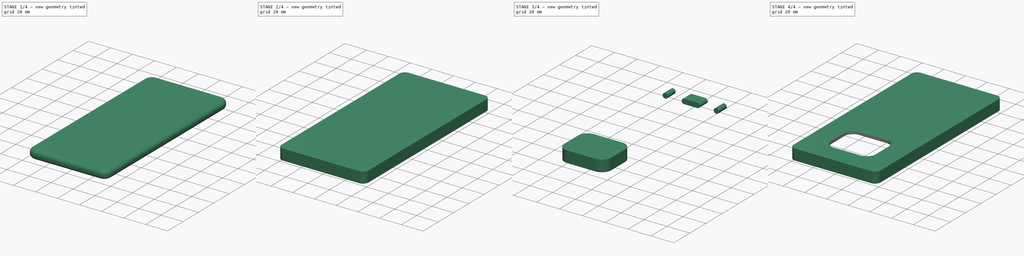
[diagram: build sequence overview — one tinted view per stage of 4, left to right]
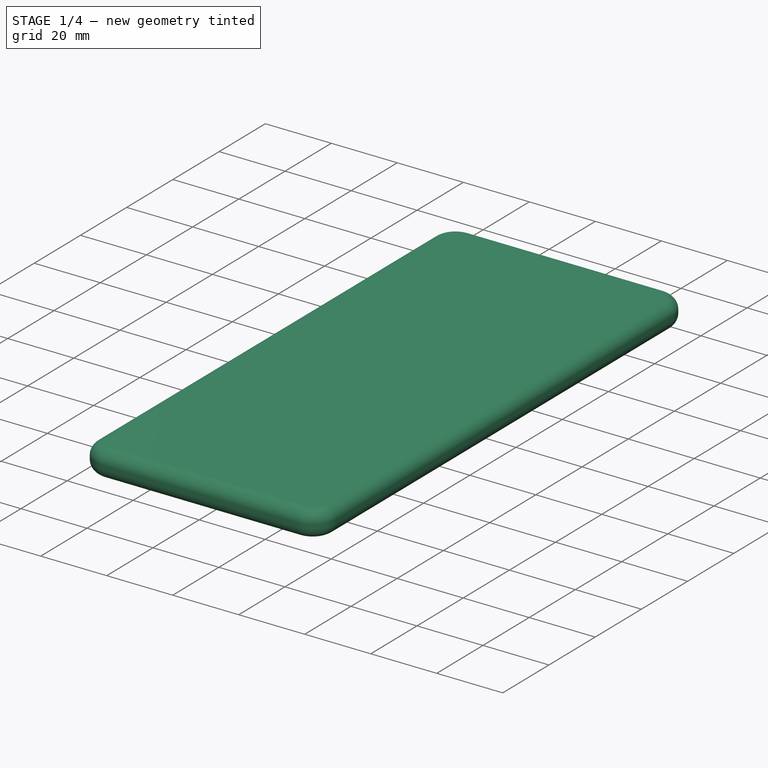
[diagram: stage 1 of 4 — iso view after this stage's code; geometry added in this stage tinted green]
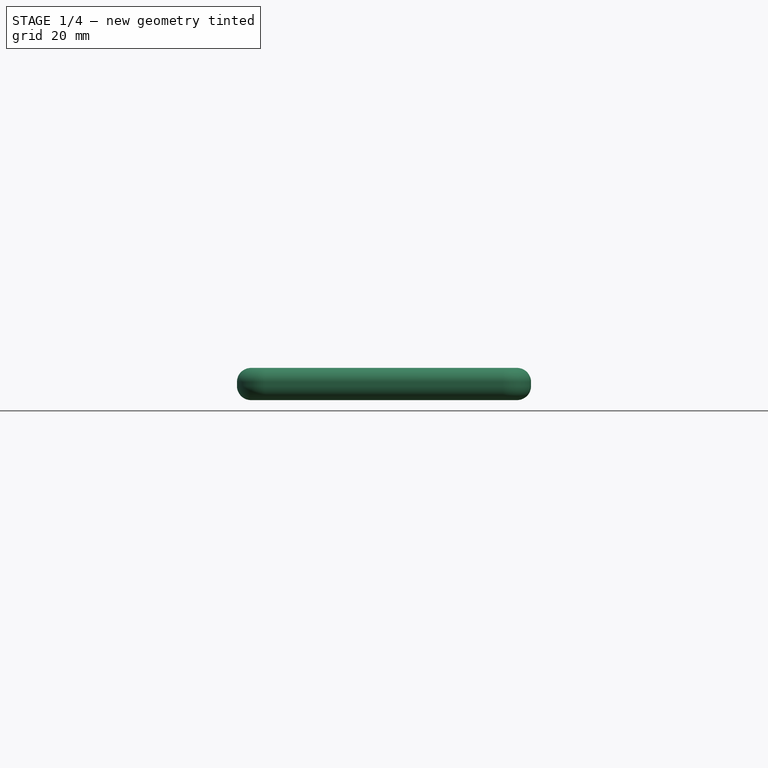
[diagram: stage 1 of 4 — front view after this stage's code; geometry added in this stage tinted green]
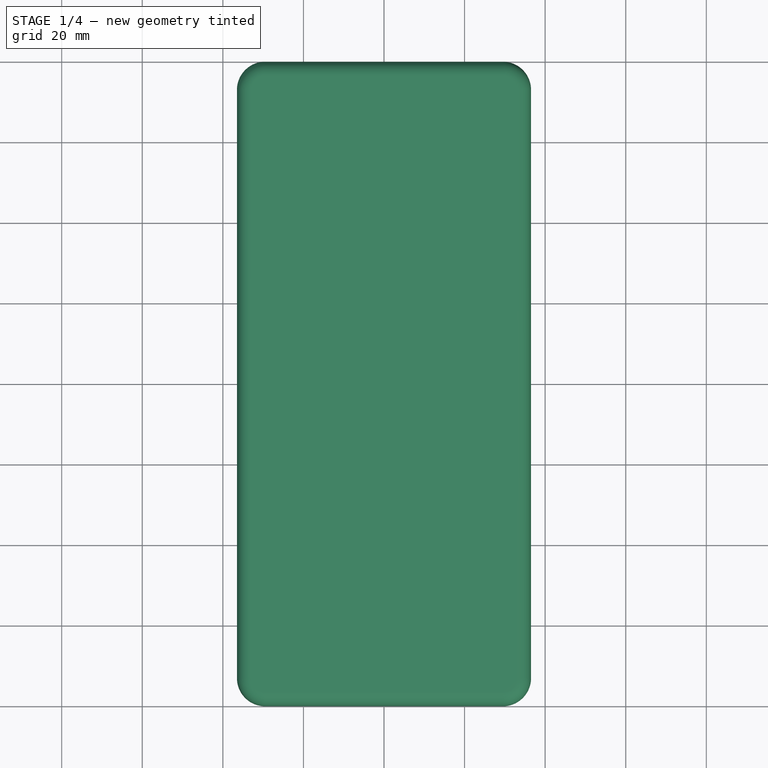
[diagram: stage 1 of 4 — top view after this stage's code; geometry added in this stage tinted green]
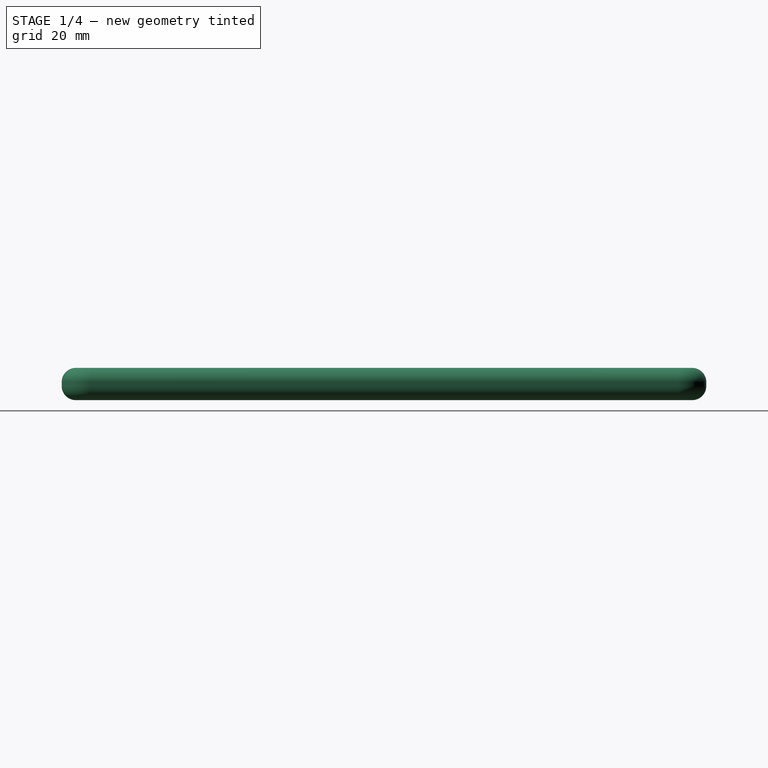
[diagram: stage 1 of 4 — right view after this stage's code; geometry added in this stage tinted green]
FCSTD DOCUMENT  (FreeCAD 0.21RUnknown)
Label: part42a-phone_case-partWB
License: All rights reserved
LicenseURL: http://en.wikipedia.org/wiki/All_rights_reserved
objects: Sketcher::SketchObject×5, Part::Extrusion×5, Part::Cut×2, Part::Fillet×1, Part::MultiFuse×1, Part::Compound×1
note: 15 computed .brp shape members not serialized (recipe doc carries the construction recipe); baked Part::Feature solids carry a one-line shape summary decoded from their .brp

FEATURE [Sketcher::SketchObject] Sketch
  FullyConstrained = true
  sketch-geometry (10):
    g0: ArcOfCircle CenterX=-29.5 CenterY=73 CenterZ=0 NormalX=0 NormalY=0 NormalZ=1 AngleXU=0 Radius=7 StartAngle=1.5708 EndAngle=3.14159
    g1: LineSegment StartX=-29.5 StartY=80 StartZ=0 EndX=29.5 EndY=80 EndZ=0
    g2: ArcOfCircle CenterX=29.5 CenterY=73 CenterZ=0 NormalX=0 NormalY=0 NormalZ=1 AngleXU=0 Radius=7 StartAngle=-1.724e-12 EndAngle=1.5708
    g3: LineSegment StartX=36.5 StartY=73 StartZ=0 EndX=36.5 EndY=-73 EndZ=0
    g4: ArcOfCircle CenterX=29.5 CenterY=-73 CenterZ=0 NormalX=0 NormalY=0 NormalZ=1 AngleXU=0 Radius=7 StartAngle=4.71239 EndAngle=6.28319
    g5: LineSegment StartX=29.5 StartY=-80 StartZ=0 EndX=-29.5 EndY=-80 EndZ=0
    g6: ArcOfCircle CenterX=-29.5 CenterY=-73 CenterZ=0 NormalX=0 NormalY=0 NormalZ=1 AngleXU=0 Radius=7 StartAngle=3.14159 EndAngle=4.71239
    g7: LineSegment StartX=-36.5 StartY=-73 StartZ=0 EndX=-36.5 EndY=73 EndZ=0
    g8: GeomPoint X=-36.5 Y=80 Z=0
    g9: GeomPoint X=36.5 Y=-80 Z=0
  constraints (23):
    c: Tangent(g0,g1) = 1.5708
    c: Tangent(g1,g2) = 1.5708
    c: Tangent(g2,g3) = 1.5708
    c: Tangent(g3,g4) = 1.5708
    c: Tangent(g4,g5) = 1.5708
    c: Tangent(g5,g6) = 1.5708
    c: Tangent(g6,g7) = 1.5708
    c: Tangent(g7,g0) = 1.5708
    c: Horizontal(g1)
    c: Horizontal(g5)
    c: Vertical(g3)
    c: Vertical(g7)
    c: Equal(g0,g2)
    c: Equal(g2,g4)
    c: Equal(g4,g6)
    c: PointOnObject(g8,g1)
    c: PointOnObject(g8,g7)
    c: PointOnObject(g9,g3)
    c: PointOnObject(g9,g5)
    c: Symmetric(g2,g6,g-1)
    c: DistanceY(g4,g1) = 160
    c: DistanceX(g0,g2) = 73
    c: Radius(g0) = 7
FEATURE [Part::Extrusion] Extrude
  Base = -> Sketch
  Dir = (0,0,1)
  DirMode = 2
  FaceMakerClass = Part::FaceMakerBullseye
  LengthFwd = 8
  LengthRev = 0
  Solid = true
  Symmetric = false
FEATURE [Part::Fillet] Fillet
  Base = -> Extrude
  Edges = 16 edges r=3.5: [Edge3,Edge4,Edge6,Edge7,Edge9,Edge10,Edge12,Edge13,Edge15,Edge16,Edge18,Edge19,Edge21,Edge22,Edge23,Edge24]
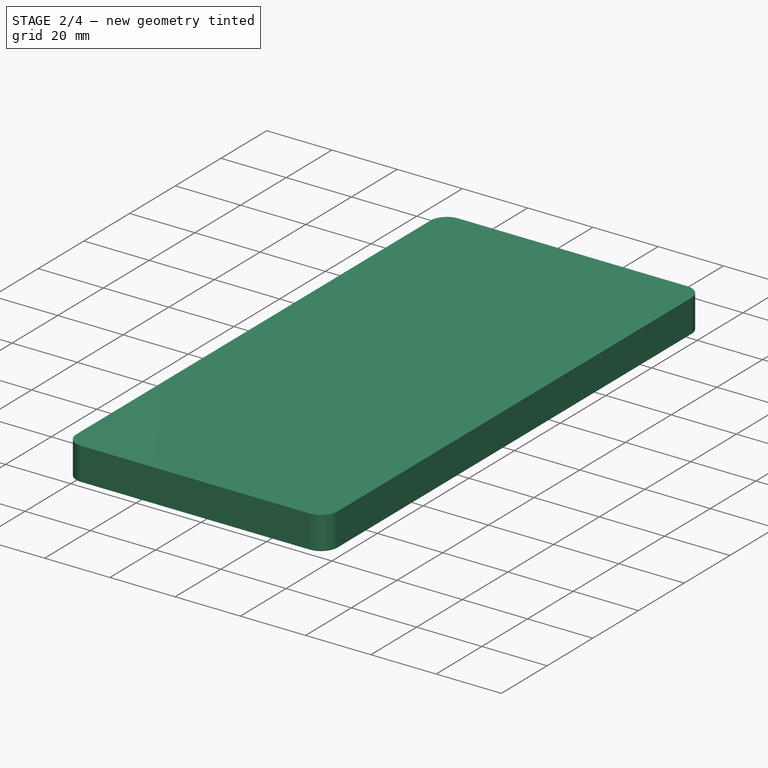
[diagram: stage 2 of 4 — iso view after this stage's code; geometry added in this stage tinted green]
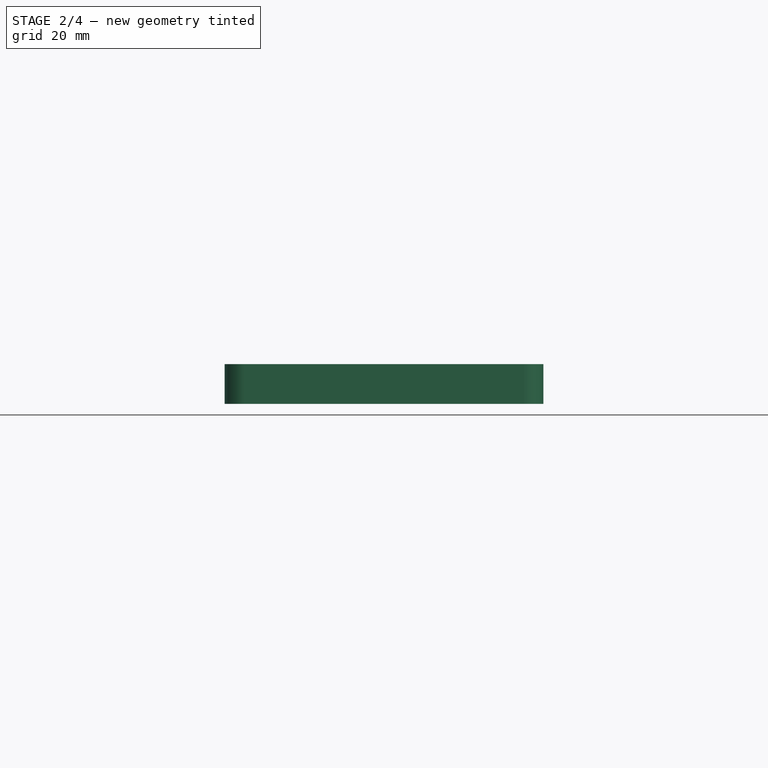
[diagram: stage 2 of 4 — front view after this stage's code; geometry added in this stage tinted green]
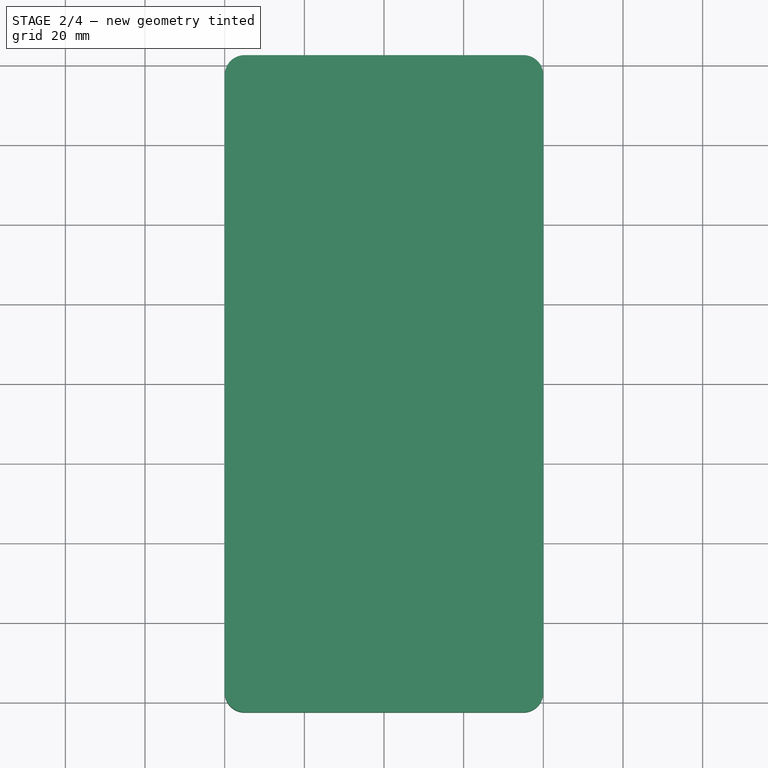
[diagram: stage 2 of 4 — top view after this stage's code; geometry added in this stage tinted green]
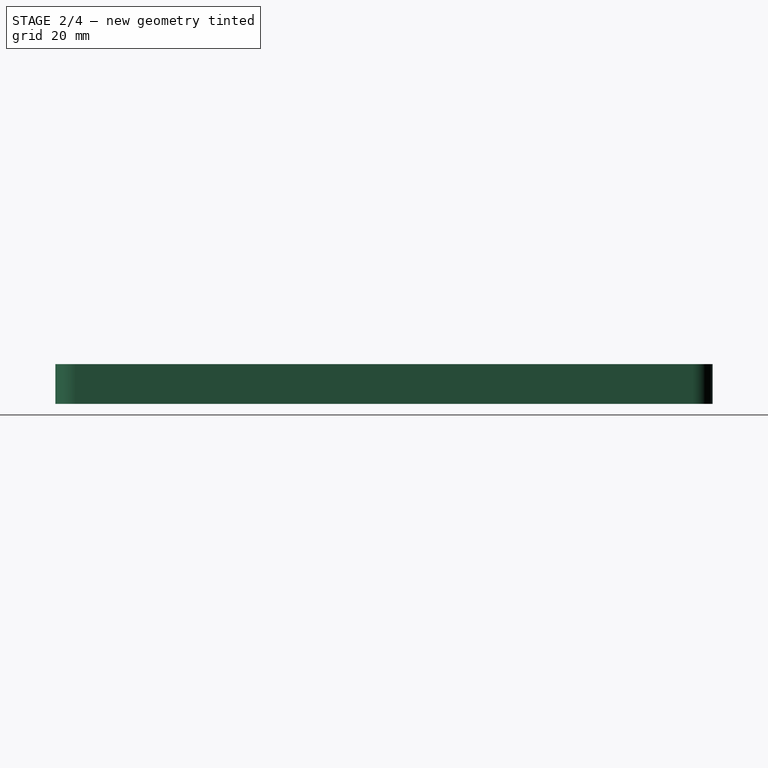
[diagram: stage 2 of 4 — right view after this stage's code; geometry added in this stage tinted green]
FEATURE [Sketcher::SketchObject] Sketch001
  ExternalGeometry = -> [Fillet]
  FullyConstrained = true
  MapMode = 5
  Placement = pos=(0,0,0) rot=(1,0,0;3.14159rad)
  Support = -> [Fillet]
  sketch-geometry (10):
    g0: ArcOfCircle CenterX=-29.5 CenterY=73 CenterZ=0 NormalX=0 NormalY=0 NormalZ=1 AngleXU=0 Radius=5.25 StartAngle=1.5708 EndAngle=3.14159
    g1: LineSegment StartX=-29.5 StartY=78.25 StartZ=0 EndX=29.5 EndY=78.25 EndZ=0
    g2: ArcOfCircle CenterX=29.5 CenterY=73 CenterZ=0 NormalX=0 NormalY=0 NormalZ=1 AngleXU=0 Radius=5.25 StartAngle=8e-16 EndAngle=1.5708
    g3: LineSegment StartX=34.75 StartY=73 StartZ=0 EndX=34.75 EndY=-73 EndZ=0
    g4: ArcOfCircle CenterX=29.5 CenterY=-73 CenterZ=0 NormalX=0 NormalY=0 NormalZ=1 AngleXU=0 Radius=5.25 StartAngle=4.71239 EndAngle=6.28319
    g5: LineSegment StartX=29.5 StartY=-78.25 StartZ=0 EndX=-29.5 EndY=-78.25 EndZ=0
    g6: ArcOfCircle CenterX=-29.5 CenterY=-73 CenterZ=0 NormalX=0 NormalY=0 NormalZ=1 AngleXU=0 Radius=5.25 StartAngle=3.14159 EndAngle=4.71239
    g7: LineSegment StartX=-34.75 StartY=-73 StartZ=0 EndX=-34.75 EndY=73 EndZ=0
    g8: GeomPoint X=-34.75 Y=78.25 Z=0
    g9: GeomPoint X=34.75 Y=-78.25 Z=0
  constraints (24):
    c: Tangent(g0,g1) = 1.5708
    c: Tangent(g1,g2) = 1.5708
    c: Tangent(g2,g3) = 1.5708
    c: Tangent(g3,g4) = 1.5708
    c: Tangent(g4,g5) = 1.5708
    c: Tangent(g5,g6) = 1.5708
    c: Tangent(g6,g7) = 1.5708
    c: Tangent(g7,g0) = 1.5708
    c: Horizontal(g1)
    c: Horizontal(g5)
    c: Vertical(g3)
    c: Vertical(g7)
    c: Equal(g0,g2)
    c: Equal(g2,g4)
    c: Equal(g4,g6)
    c: PointOnObject(g8,g1)
    c: PointOnObject(g8,g7)
    c: PointOnObject(g9,g3)
    c: PointOnObject(g9,g5)
    c: PointOnObject(g0,g-3)
    c: PointOnObject(g0,g-4)
    c: DistanceX(g0,g-4) = 1.75
    c: PointOnObject(g3,g-7)
    c: PointOnObject(g4,g-6)
FEATURE [Part::Extrusion] Extrude001
  Base = -> Sketch001
  Dir = (0,0,-1)
  DirMode = 2
  FaceMakerClass = Part::FaceMakerBullseye
  LengthFwd = 5
  LengthRev = 0
  Solid = true
  Symmetric = true
FEATURE [Part::MultiFuse] Fusion  label="PhoneBlank"
  Shapes = -> [Extrude001,Fillet]
FEATURE [Sketcher::SketchObject] Sketch002
  AttachmentOffset = pos=(0,0,-3) rot=(0,0,1;0rad)
  FullyConstrained = true
  MapMode = 5
  Placement = pos=(0,0,0.5) rot=(1,0,0;3.14159rad)
  Support = -> [Fusion]
  sketch-geometry (12):
    g0: LineSegment StartX=-35 StartY=82.5 StartZ=0 EndX=35 EndY=82.5 EndZ=0
    g1: LineSegment StartX=40 StartY=77.5 StartZ=0 EndX=40 EndY=-77.5 EndZ=0
    g2: LineSegment StartX=35 StartY=-82.5 StartZ=0 EndX=-35 EndY=-82.5 EndZ=0
    g3: LineSegment StartX=-40 StartY=-77.5 StartZ=0 EndX=-40 EndY=77.5 EndZ=0
    g4: ArcOfCircle CenterX=-35 CenterY=77.5 CenterZ=0 NormalX=0 NormalY=0 NormalZ=1 AngleXU=0 Radius=5 StartAngle=1.5708 EndAngle=3.14159
    g5: GeomPoint X=-40 Y=82.5 Z=0
    g6: ArcOfCircle CenterX=35 CenterY=77.5 CenterZ=0 NormalX=0 NormalY=0 NormalZ=1 AngleXU=0 Radius=5 StartAngle=0 EndAngle=1.5708
    g7: GeomPoint X=40 Y=82.5 Z=0
    g8: ArcOfCircle CenterX=-35 CenterY=-77.5 CenterZ=0 NormalX=0 NormalY=0 NormalZ=1 AngleXU=0 Radius=5 StartAngle=3.14159 EndAngle=4.71239
    g9: GeomPoint X=-40 Y=-82.5 Z=0
    g10: ArcOfCircle CenterX=35 CenterY=-77.5 CenterZ=0 NormalX=0 NormalY=0 NormalZ=1 AngleXU=0 Radius=5 StartAngle=4.71239 EndAngle=6.28319
    g11: GeomPoint X=40 Y=-82.5 Z=0
  constraints (27):
    c: Horizontal(g0)
    c: Horizontal(g2)
    c: Vertical(g1)
    c: Vertical(g3)
    c: Symmetric(g7,g9,g-1)
    c: DistanceX(g5,g7) = 80
    c: DistanceY(g9,g5) = 165
    c: PointOnObject(g5,g0)
    c: PointOnObject(g5,g3)
    c: Tangent(g0,g4) = 1.5708
    c: Tangent(g3,g4) = 1.5708
    c: PointOnObject(g7,g0)
    c: PointOnObject(g7,g1)
    c: Tangent(g0,g6) = 1.5708
    c: Tangent(g1,g6) = 1.5708
    c: PointOnObject(g9,g3)
    c: PointOnObject(g9,g2)
    c: Tangent(g3,g8) = 1.5708
    c: Tangent(g2,g8) = 1.5708
    c: PointOnObject(g11,g2)
    c: PointOnObject(g11,g1)
    c: Tangent(g2,g10) = 1.5708
    c: Tangent(g1,g10) = 1.5708
    c: Equal(g8,g6)
    c: Equal(g4,g10)
    c: Equal(g10,g8)
    c: Radius(g6) = 5
FEATURE [Part::Extrusion] Extrude002  label="Case"
  Base = -> Sketch002
  Dir = (0,0,-1)
  DirMode = 2
  FaceMakerClass = Part::FaceMakerBullseye
  LengthFwd = -10
  LengthRev = 0
  Solid = true
  Symmetric = false
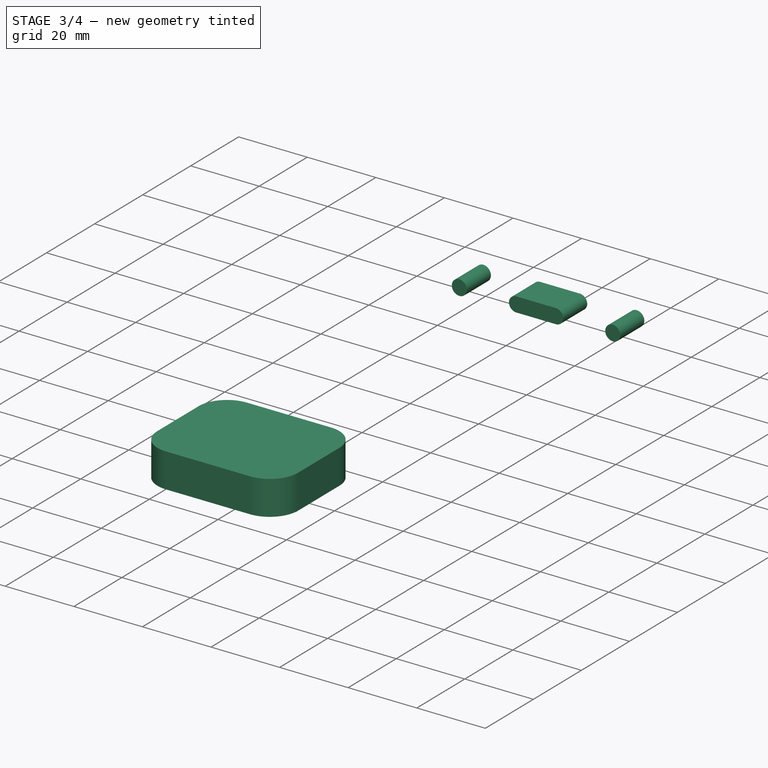
[diagram: stage 3 of 4 — iso view after this stage's code; geometry added in this stage tinted green]
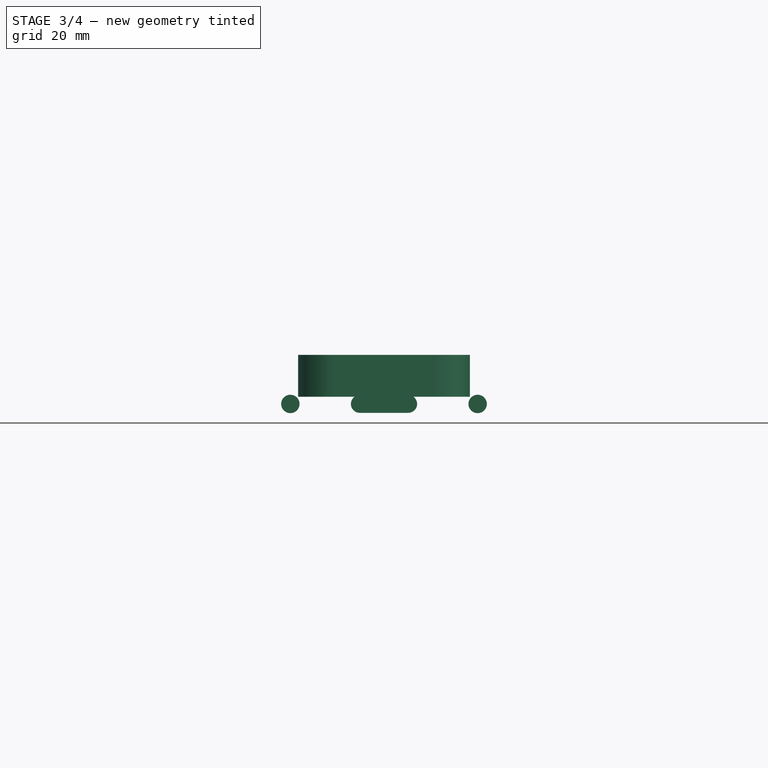
[diagram: stage 3 of 4 — front view after this stage's code; geometry added in this stage tinted green]
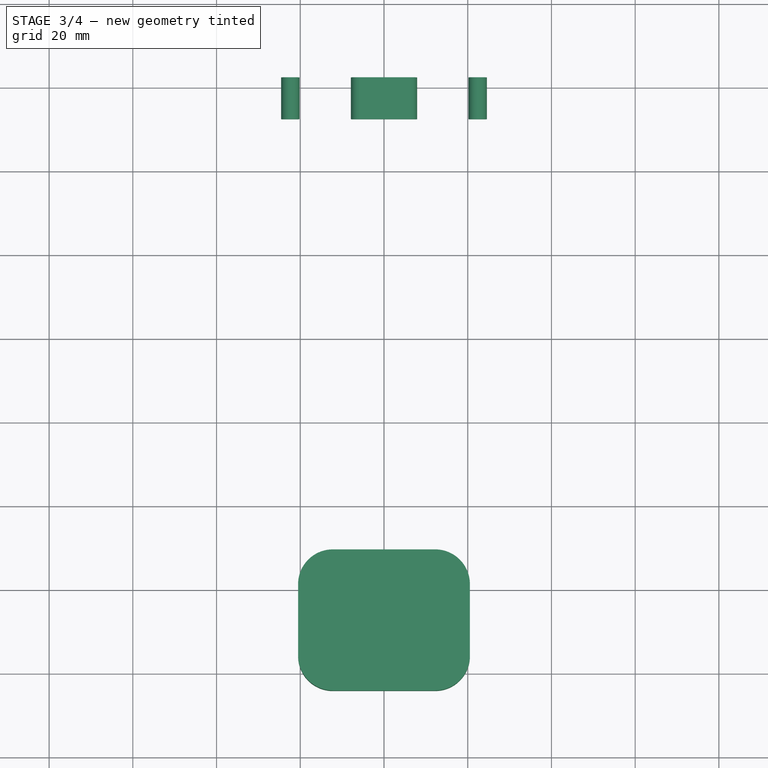
[diagram: stage 3 of 4 — top view after this stage's code; geometry added in this stage tinted green]
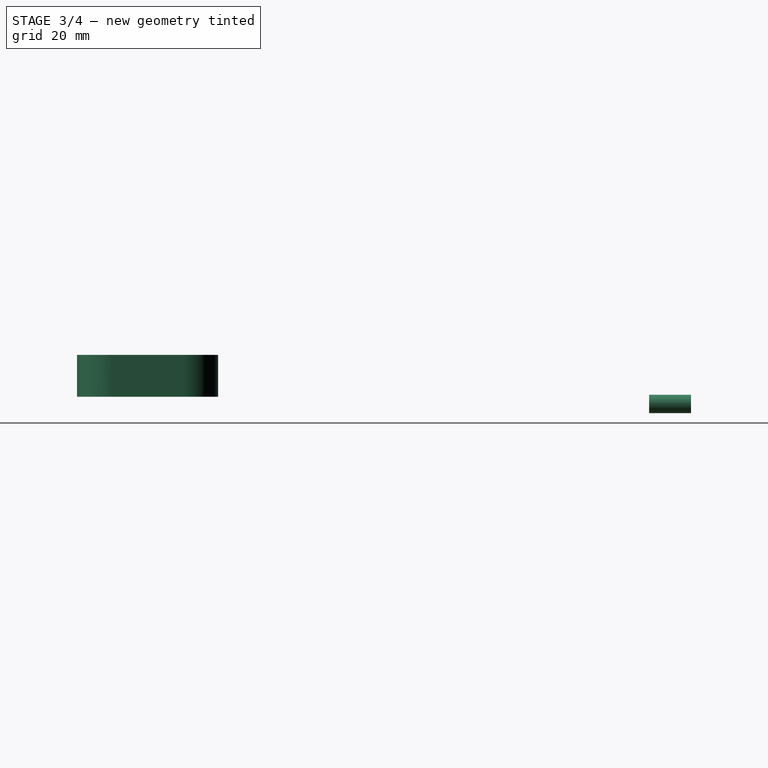
[diagram: stage 3 of 4 — right view after this stage's code; geometry added in this stage tinted green]
FEATURE [Part::Cut] Cut
  Base = -> Extrude002
  Tool = -> Fusion
FEATURE [Sketcher::SketchObject] Sketch003
  ExternalGeometry = -> [Cut]
  FullyConstrained = false
  MapMode = 5
  Placement = pos=(0,82.5,0) rot=(0,0.707107,0.707107;3.14159rad)
  Support = -> [Cut]
  sketch-geometry (6):
    g0: ArcOfCircle CenterX=5.78799 CenterY=6.27106 CenterZ=0 NormalX=0 NormalY=0 NormalZ=1 AngleXU=0 Radius=2.12104 StartAngle=4.71239 EndAngle=7.85398
    g1: ArcOfCircle CenterX=-5.78799 CenterY=6.27106 CenterZ=0 NormalX=0 NormalY=0 NormalZ=1 AngleXU=0 Radius=2.12104 StartAngle=1.5708 EndAngle=4.71239
    g2: LineSegment StartX=5.78799 StartY=8.3921 StartZ=0 EndX=-5.78799 EndY=8.3921 EndZ=0
    g3: LineSegment StartX=-5.78799 StartY=4.15002 StartZ=0 EndX=5.78799 EndY=4.15002 EndZ=0
    g4: Circle CenterX=-22.3703 CenterY=6.27106 CenterZ=0 NormalX=0 NormalY=0 NormalZ=1 AngleXU=0 Radius=2.19767
    g5: Circle CenterX=22.3703 CenterY=6.27106 CenterZ=0 NormalX=0 NormalY=0 NormalZ=1 AngleXU=0 Radius=2.19767
  constraints (9):
    c: Tangent(g0,g2) = -1.5708
    c: Tangent(g2,g1) = -1.5708
    c: Tangent(g1,g3) = -1.5708
    c: Tangent(g3,g0) = -1.5708
    c: Equal(g0,g1)
    c: Symmetric(g0,g1,g-2)
    c: Horizontal(g5,g0)
    c: Equal(g4,g5)
    c: Symmetric(g4,g5,g-2)
FEATURE [Part::Extrusion] Extrude003
  Base = -> Sketch003
  Dir = (0,1,2e-16)
  DirMode = 2
  FaceMakerClass = Part::FaceMakerBullseye
  LengthFwd = -10
  LengthRev = 0
  Solid = true
  Symmetric = false
FEATURE [Sketcher::SketchObject] Sketch004
  FullyConstrained = false
  MapMode = 5
  Placement = pos=(0,0,8) rot=(1,0,0;3.14159rad)
  Support = -> [Cut]
  sketch-geometry (10):
    g0: ArcOfCircle CenterX=-12.2187 CenterY=55.8631 CenterZ=0 NormalX=0 NormalY=0 NormalZ=1 AngleXU=0 Radius=8.3032 StartAngle=1.5708 EndAngle=3.14159
    g1: LineSegment StartX=-12.2187 StartY=64.1663 StartZ=0 EndX=12.2187 EndY=64.1663 EndZ=0
    g2: ArcOfCircle CenterX=12.2187 CenterY=55.8631 CenterZ=0 NormalX=0 NormalY=0 NormalZ=1 AngleXU=0 Radius=8.3032 StartAngle=0 EndAngle=1.5708
    g3: LineSegment StartX=20.5219 StartY=55.8631 StartZ=0 EndX=20.5219 EndY=38.7657 EndZ=0
    g4: ArcOfCircle CenterX=12.2187 CenterY=38.7657 CenterZ=0 NormalX=0 NormalY=0 NormalZ=1 AngleXU=0 Radius=8.3032 StartAngle=4.71239 EndAngle=6.28319
    g5: LineSegment StartX=12.2187 StartY=30.4625 StartZ=0 EndX=-12.2187 EndY=30.4625 EndZ=0
    g6: ArcOfCircle CenterX=-12.2187 CenterY=38.7657 CenterZ=0 NormalX=0 NormalY=0 NormalZ=1 AngleXU=0 Radius=8.3032 StartAngle=3.14159 EndAngle=4.71239
    g7: LineSegment StartX=-20.5219 StartY=38.7657 StartZ=0 EndX=-20.5219 EndY=55.8631 EndZ=0
    g8: GeomPoint X=-20.5219 Y=64.1663 Z=0
    g9: GeomPoint X=20.5219 Y=30.4625 Z=0
  constraints (19):
    c: Tangent(g0,g1) = 1.5708
    c: Tangent(g1,g2) = 1.5708
    c: Tangent(g2,g3) = 1.5708
    c: Tangent(g3,g4) = 1.5708
    c: Tangent(g4,g5) = 1.5708
    c: Tangent(g5,g6) = 1.5708
    c: Tangent(g6,g7) = 1.5708
    c: Tangent(g7,g0) = 1.5708
    c: Horizontal(g1)
    c: Horizontal(g5)
    c: Vertical(g3)
    c: Vertical(g7)
    c: Equal(g0,g2)
    c: Equal(g2,g4)
    c: PointOnObject(g8,g1)
    c: PointOnObject(g8,g7)
    c: PointOnObject(g9,g3)
    c: PointOnObject(g9,g5)
    c: Symmetric(g6,g4,g-2)
FEATURE [Part::Extrusion] Extrude004
  Base = -> Sketch004
  Dir = (0,0,-1)
  DirMode = 2
  FaceMakerClass = Part::FaceMakerBullseye
  LengthFwd = -10
  LengthRev = 0
  Solid = true
  Symmetric = false
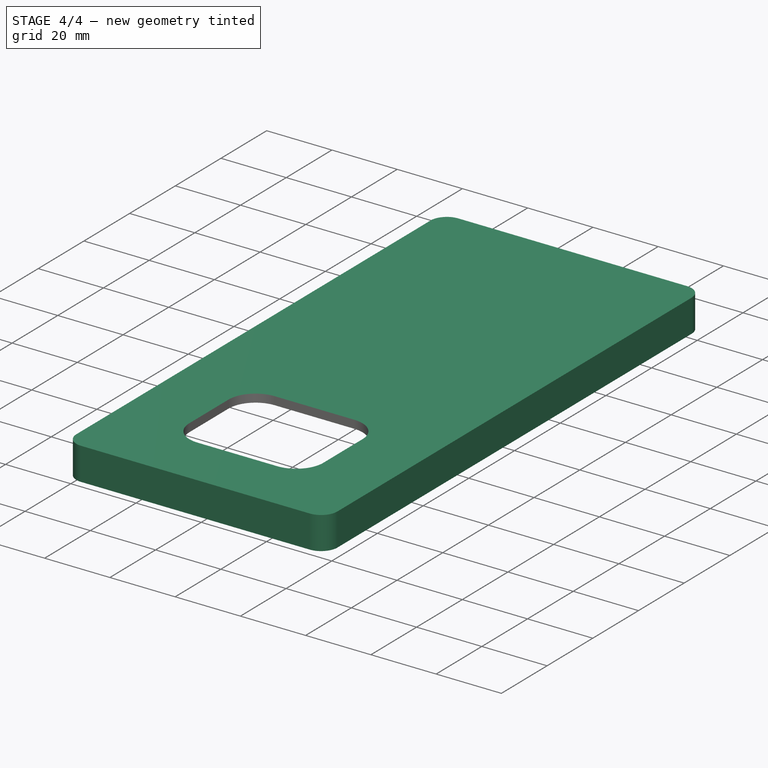
[diagram: stage 4 of 4 — iso view after this stage's code; geometry added in this stage tinted green]
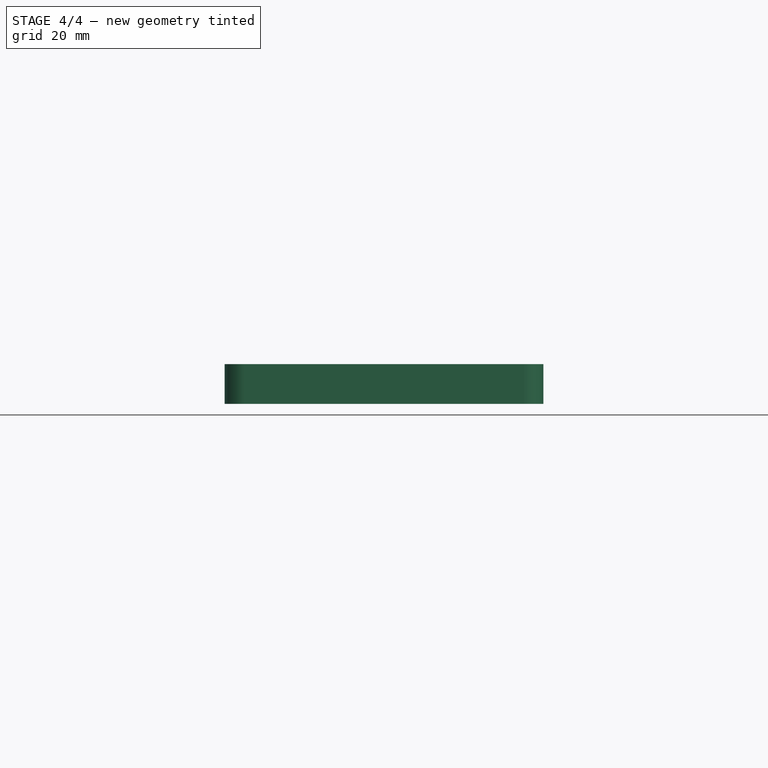
[diagram: stage 4 of 4 — front view after this stage's code; geometry added in this stage tinted green]
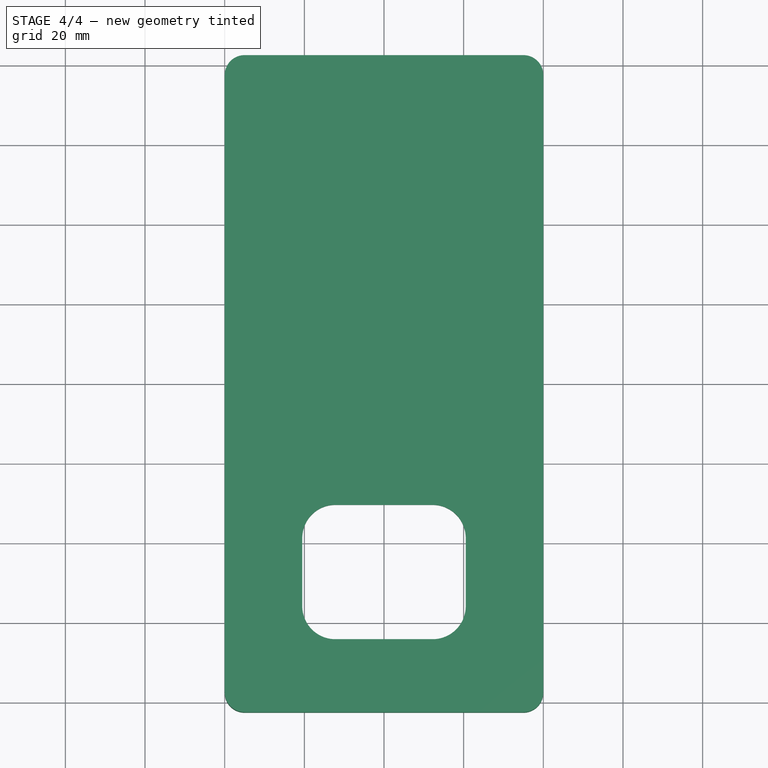
[diagram: stage 4 of 4 — top view after this stage's code; geometry added in this stage tinted green]
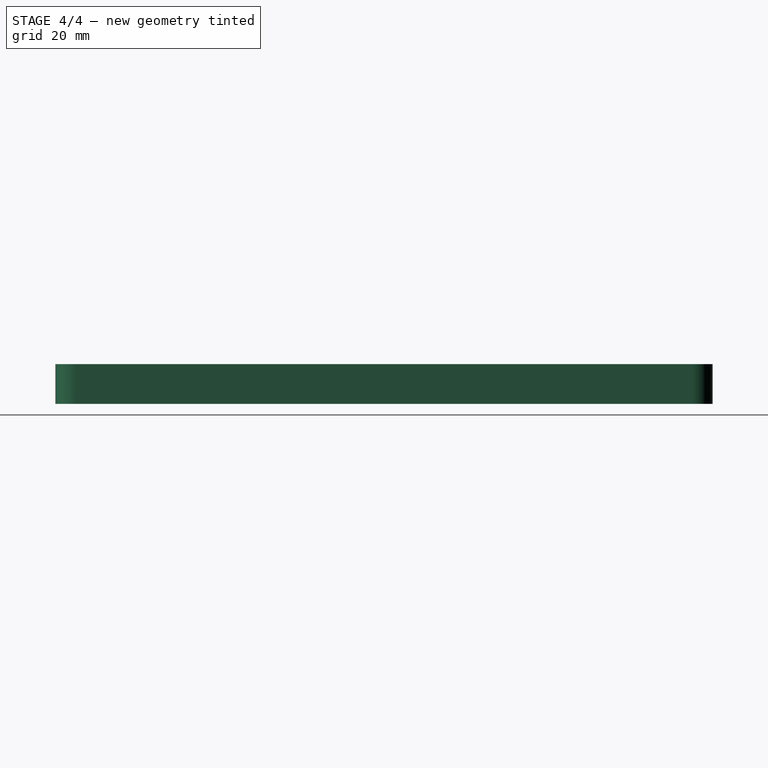
[diagram: stage 4 of 4 — right view after this stage's code; geometry added in this stage tinted green]
FEATURE [Part::Compound] Compound  label=" Compound - Features to remove"
  Links = -> [Extrude003,Extrude004]
FEATURE [Part::Cut] Cut001
  Base = -> Cut
  Tool = -> Compound
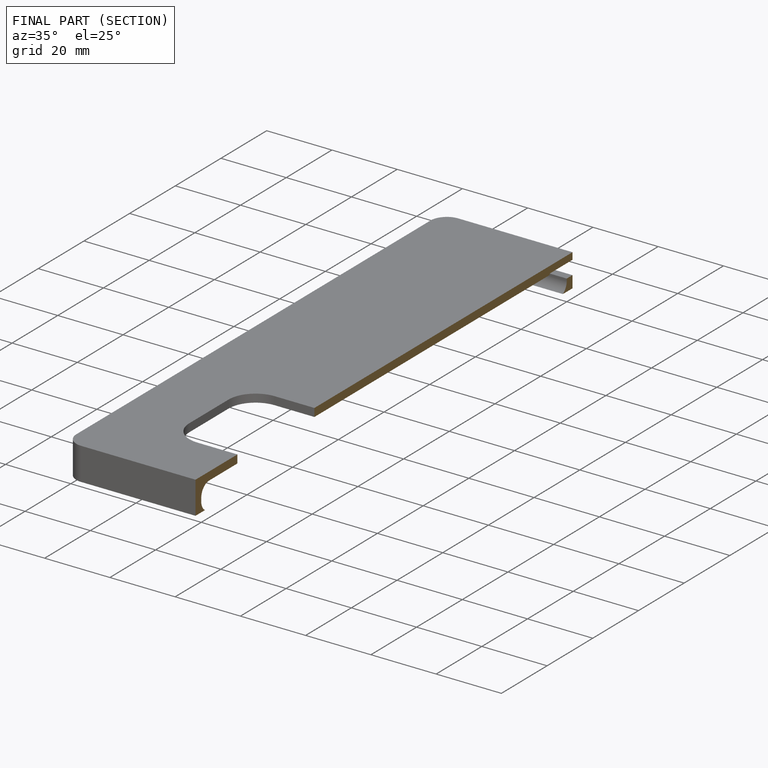
[diagram: finished part — half-section view (interior)]
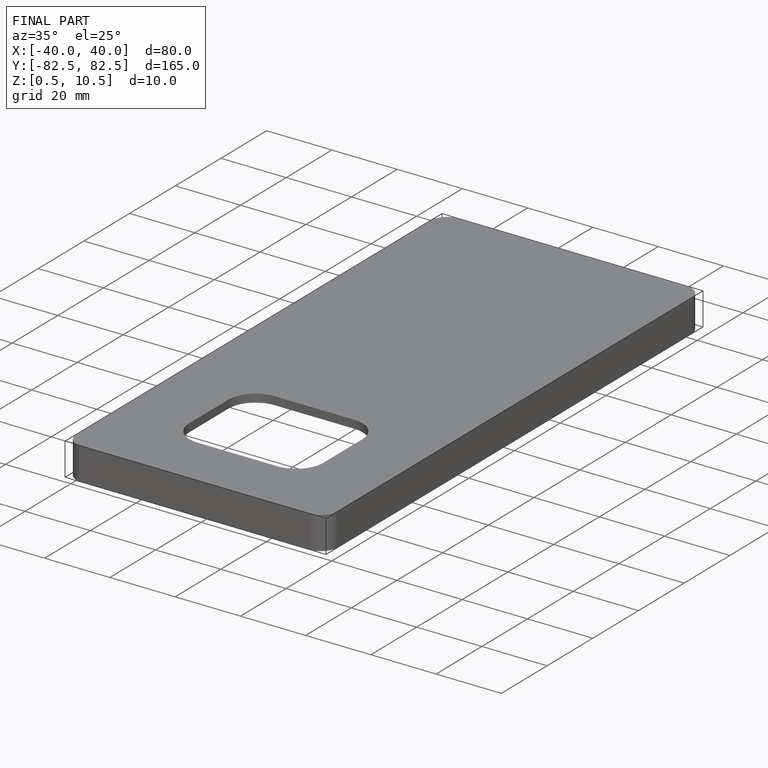
[diagram: finished part — iso view with bounding-box wireframe]
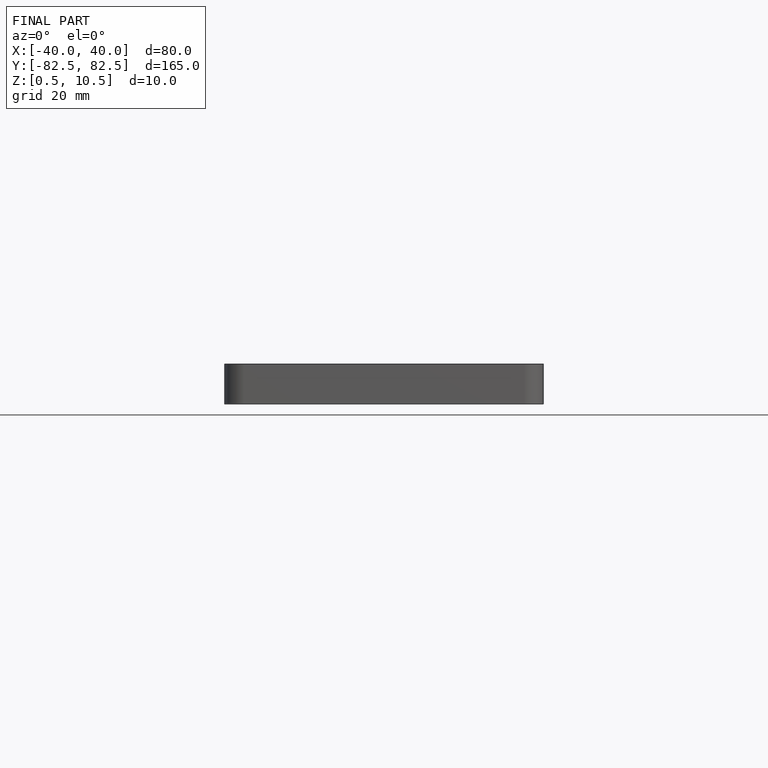
[diagram: finished part — front view with bounding-box wireframe]
